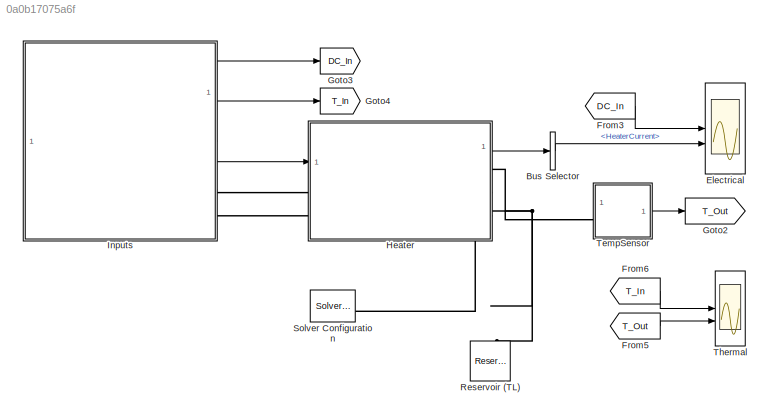
MODEL slx_0a0b17075a6f
KIND model
CONFIG AbsTol = auto
CONFIG EnableMultiTasking = off
CONFIG FixedStep = auto
CONFIG MaxStep = auto
CONFIG MinStep = auto
CONFIG PreLoadFcn = HeaterTestHarnessParams;
CONFIG RelTol = 1e-3
CONFIG SampleTimeConstraint = Unconstrained
CONFIG SolverName = VariableStepAuto
CONFIG StartTime = 0.0
CONFIG StopTime = 1200
BLOCK [BusSelector] Bus Selector
  OutputSignals = HeaterCurrent
BLOCK [Scope] Electrical
  Floating = off
  NumInputPorts = 2
  ScopeSpecificationString = Simulink.scopes.TimeScopeBlockCfg('CurrentConfiguration', extmgr.ConfigurationSet(extmgr.Configuration('Core','General UI',true),extmgr.Configuration('Core','Source UI',true),extmgr.Configuration('Sources','WiredSimulink',true,'DataLoggingVariableName','ScopeData1'),extmgr.Configuration('Visuals','Time Domain',true,'SerializedDisplays',{struct('MinYLimReal','300.00000','MaxYLimReal','500.00000','Y...<+2315ch>
BLOCK [From] From3
  GotoTag = DC_In
BLOCK [From] From5
  GotoTag = T_Out
BLOCK [From] From6
  GotoTag = T_In
BLOCK [Goto] Goto2
  GotoTag = T_Out
BLOCK [Goto] Goto3
  GotoTag = DC_In
BLOCK [Goto] Goto4
  GotoTag = T_In
BLOCK [SubSystem] Heater
  PortSchema = {"entries":[{"content":{"sides":[{"content":{"connectorIds":["In1","RConn2","RConn3","LConn1"]},"type":"ConnectorPlacement.EquallySpacedRectSide","uuid":"ce30ae8b-5450-41bb-a151-917adaee283f"},{"content":{"connectorIds":["Out1","RConn1"],"side":"RIGHT"},"type":"ConnectorPlacement.EquallySpacedRectSide","uuid":"6eb256d7-fd4f-4dbb-b31f-ac2af5f193ca"},{"content":{"side":"TOP"},"type":"ConnectorPlacem...<+258ch>
  ReferencedSubsystem = Heater
  VariantControl = Driveline == 1
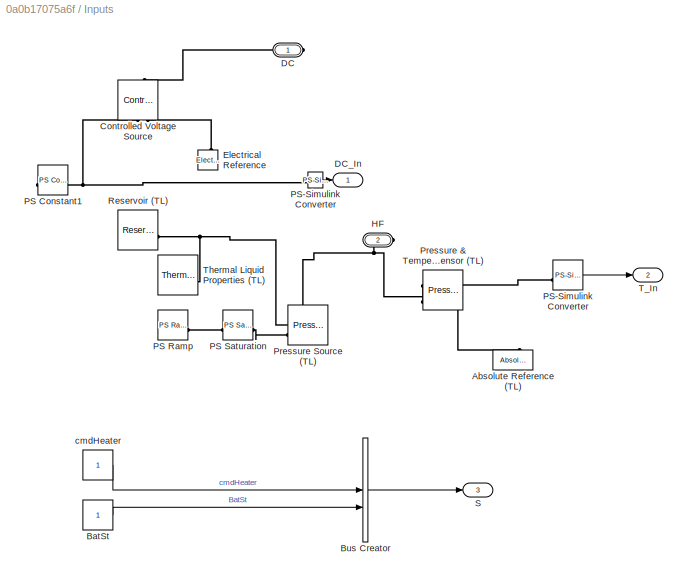
BLOCK [SubSystem] Inputs
BLOCK [Reference] Inputs/Absolute Reference (TL)  REF=fl_lib/Thermal Liquid/Elements/Absolute Reference
(TL)
  NameLocation = right
  SourceBlock = fl_lib/Thermal Liquid/Elements/Absolute Reference\n(TL)
  SourceType = Absolute Reference\n(TL)
BLOCK [Constant] Inputs/BatSt
BLOCK [BusCreator] Inputs/Bus Creator
  DisplayOption = bar
  InheritFromInputs = on
  Inputs = 2
BLOCK [Reference] Inputs/Controlled Voltage Source  REF=fl_lib/Electrical/Electrical Sources/Controlled Voltage
Source
  NameLocation = right
  SourceBlock = fl_lib/Electrical/Electrical Sources/Controlled Voltage\nSource
  SourceType = Controlled Voltage\nSource
BLOCK [PMIOPort] Inputs/DC
  Side = Right
BLOCK [Outport] Inputs/DC_In
BLOCK [Reference] Inputs/Electrical Reference  REF=fl_lib/Electrical/Electrical Elements/Electrical Reference
  NameLocation = right
  SourceBlock = fl_lib/Electrical/Electrical Elements/Electrical Reference
  SourceType = Electrical Reference
BLOCK [PMIOPort] Inputs/HF
  Port = 2
  Side = Right
BLOCK [Reference] Inputs/PS Constant1  REF=fl_lib/Physical Signals/Sources/PS Constant
  NameLocation = top
  SourceBlock = fl_lib/Physical Signals/Sources/PS Constant
  SourceType = PS Constant
BLOCK [Reference] Inputs/PS Ramp  REF=fl_lib/Physical Signals/Sources/PS Ramp
  SourceBlock = fl_lib/Physical Signals/Sources/PS Ramp
  SourceType = PS Ramp
BLOCK [Reference] Inputs/PS Saturation  REF=fl_lib/Physical Signals/Nonlinear Operators/PS Saturation
  SourceBlock = fl_lib/Physical Signals/Nonlinear Operators/PS Saturation
  SourceType = PS Saturation
BLOCK [Reference] Inputs/PS-Simulink Converter  REF=nesl_utility/PS-Simulink
Converter
  SourceBlock = nesl_utility/PS-Simulink\nConverter
  SourceType = PS-Simulink\nConverter
BLOCK [Reference] Inputs/Pressure & Temperature Sensor (TL)  REF=fl_lib/Thermal Liquid/Sensors/Pressure &
Temperature Sensor
(TL)
  SourceBlock = fl_lib/Thermal Liquid/Sensors/Pressure &\nTemperature Sensor\n(TL)
  SourceType = Pressure &\nTemperature Sensor\n(TL)
BLOCK [Reference] Inputs/Pressure Source (TL)  REF=fl_lib/Thermal Liquid/Sources/Pressure Source (TL)
  SourceBlock = fl_lib/Thermal Liquid/Sources/Pressure Source (TL)
  SourceType = Pressure Source (TL)
BLOCK [Reference] Inputs/Reservoir (TL)  REF=fl_lib/Thermal Liquid/Elements/Reservoir (TL)
  SourceBlock = fl_lib/Thermal Liquid/Elements/Reservoir (TL)
  SourceType = Reservoir (TL)
BLOCK [Outport] Inputs/S
  Port = 3
BLOCK [Outport] Inputs/T_In
  Port = 2
BLOCK [Reference] Inputs/Thermal Liquid Properties (TL)  REF=SimscapeFluids_lib/Thermal Liquid/Utilities/Thermal Liquid
Properties (TL)
  SourceBlock = SimscapeFluids_lib/Thermal Liquid/Utilities/Thermal Liquid\nProperties (TL)
  SourceType = Thermal Liquid\nProperties (TL)
BLOCK [Constant] Inputs/cmdHeater
BLOCK [Reference] Reservoir (TL)  REF=fl_lib/Thermal Liquid/Elements/Reservoir (TL)
  NameLocation = right
  SourceBlock = fl_lib/Thermal Liquid/Elements/Reservoir (TL)
  SourceType = Reservoir (TL)
BLOCK [Reference] Solver Configuration  REF=nesl_utility/Solver
Configuration
  SourceBlock = nesl_utility/Solver\nConfiguration
  SourceType = Solver\nConfiguration
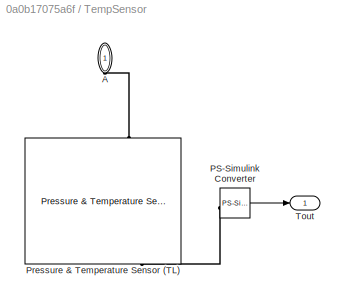
BLOCK [SubSystem] TempSensor
BLOCK [PMIOPort] TempSensor/A
  NameLocation = left
  Side = Left
BLOCK [Reference] TempSensor/PS-Simulink Converter  REF=nesl_utility/PS-Simulink
Converter
  SourceBlock = nesl_utility/PS-Simulink\nConverter
  SourceType = PS-Simulink\nConverter
BLOCK [Reference] TempSensor/Pressure & Temperature Sensor (TL)  REF=fl_lib/Thermal Liquid/Sensors/Pressure &
Temperature Sensor
(TL)
  NameLocation = left
  SourceBlock = fl_lib/Thermal Liquid/Sensors/Pressure &\nTemperature Sensor\n(TL)
  SourceType = Pressure &\nTemperature Sensor\n(TL)
BLOCK [Outport] TempSensor/Tout
BLOCK [Scope] Thermal
  Floating = off
  NumInputPorts = 2
  ScopeSpecificationString = Simulink.scopes.TimeScopeBlockCfg('CurrentConfiguration', extmgr.ConfigurationSet(extmgr.Configuration('Core','General UI',true),extmgr.Configuration('Core','Source UI',true),extmgr.Configuration('Sources','WiredSimulink',true,'DataLoggingVariableName','ScopeData2'),extmgr.Configuration('Visuals','Time Domain',true,'SerializedDisplays',{struct('MinYLimReal','298.11644','MaxYLimReal','298.50202','Y...<+2272ch>
LINE Bus Selector:1 -> Electrical:2
LINE From3:1 -> Electrical:1
LINE From5:1 -> Thermal:2
LINE From6:1 -> Thermal:1
LINE Heater:1 -> Bus Selector:1
LINE Inputs/BatSt:1 -> Inputs/Bus Creator:2
LINE Inputs/Bus Creator:1 -> Inputs/S:1
NET Inputs/PS-Simulink Converter:1 -> Inputs/DC_In:1, Inputs/T_In:1
LINE Inputs/cmdHeater:1 -> Inputs/Bus Creator:1
LINE Inputs:1 -> Goto3:1
LINE Inputs:2 -> Goto4:1
LINE Inputs:3 -> Heater:1
LINE TempSensor/PS-Simulink Converter:1 -> TempSensor/Tout:1
LINE TempSensor:1 -> Goto2:1
PNET net1: Heater:RConn1 -- Reservoir (TL):LConn1 -- Solver Configuration:RConn1 -- TempSensor:LConn1
PLINE Heater:RConn2 -- Inputs:RConn1
PLINE Heater:RConn3 -- Inputs:RConn2
PLINE Inputs/Absolute Reference (TL):LConn1 -- Inputs/Pressure & Temperature Sensor (TL):RConn1
PLINE Inputs/Controlled Voltage Source:LConn1 -- Inputs/DC:RConn1
PNET net2: Inputs/Controlled Voltage Source:RConn1 -- Inputs/PS Constant1:RConn1 -- Inputs/PS-Simulink Converter:LConn1 -- Inputs/Pressure & Temperature Sensor (TL):RConn3
PLINE Inputs/Controlled Voltage Source:RConn2 -- Inputs/Electrical Reference:LConn1
PNET net3: Inputs/HF:RConn1 -- Inputs/Pressure & Temperature Sensor (TL):LConn1 -- Inputs/Pressure Source (TL):RConn1
PLINE Inputs/PS Ramp:RConn1 -- Inputs/PS Saturation:LConn1
PLINE Inputs/PS Saturation:RConn1 -- Inputs/Pressure Source (TL):LConn2
PNET net4: Inputs/Pressure Source (TL):LConn1 -- Inputs/Reservoir (TL):LConn1 -- Inputs/Thermal Liquid Properties (TL):RConn1
PLINE TempSensor/A:RConn1 -- TempSensor/Pressure & Temperature Sensor (TL):LConn1
PLINE TempSensor/PS-Simulink Converter:LConn1 -- TempSensor/Pressure & Temperature Sensor (TL):RConn2
note: NET lines group one-source signal fan-out (src -> all destinations, sorted); 1:1 wires keep LINE; PNET lines group multi-terminal physical nets as a canonical sorted terminal list (undirected conserving connections); 2-terminal nets keep the pairwise PLINE form
